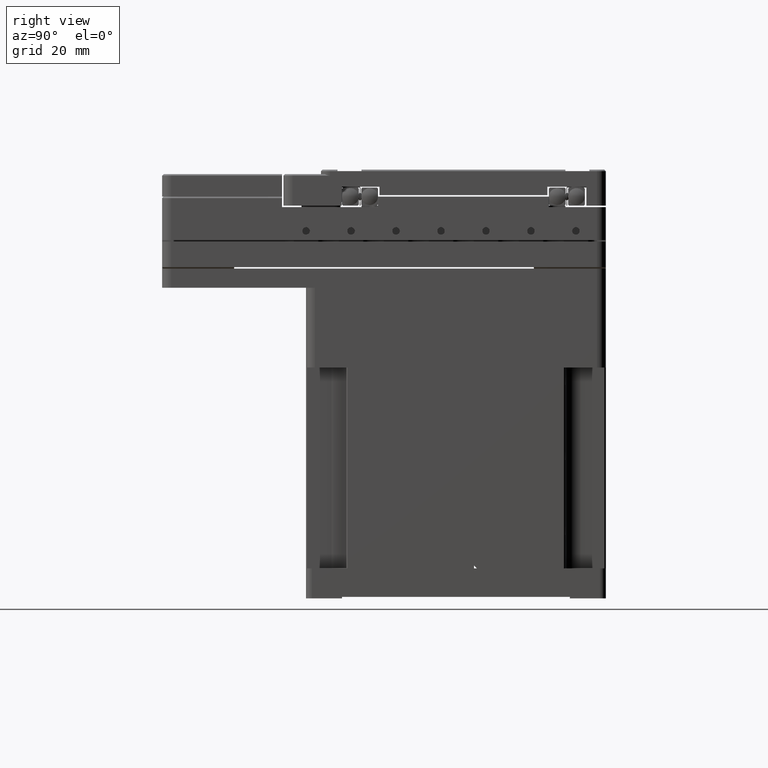
[diagram: clean part render]
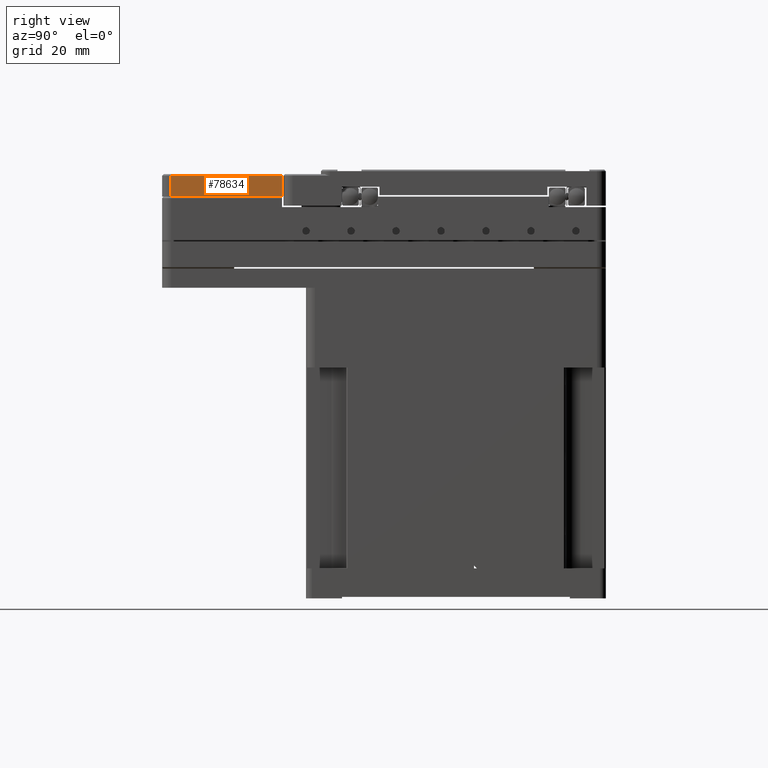
[diagram: same view with one face highlighted and labeled with its STEP entity id]
A machine part, right view. The second image highlights one B-rep face of the part: STEP entity #78634.
In plain terms, the highlighted planar face has unit normal (1, -0, 0).
Its self-contained STEP definition (entity closure, byte-faithful):
#3441 = DIRECTION ( 'NONE',  ( 1.665334536937734811E-16, 1.000000000000000000, -0.000000000000000000 ) ) ;
#5225 = EDGE_CURVE ( 'NONE', #83578, #23950, #44139, .T. ) ;
#9554 = LINE ( 'NONE', #25073, #69283 ) ;
#11526 = CARTESIAN_POINT ( 'NONE',  ( 49.99999999902998837, -94.99999998645006372, 131.0000000016947865 ) ) ;
#12803 = VECTOR ( 'NONE', #87425, 1000.000000000000000 ) ;
#17460 = EDGE_CURVE ( 'NONE', #17533, #90314, #9554, .T. ) ;
#17533 = VERTEX_POINT ( 'NONE', #29184 ) ;
#23950 = VERTEX_POINT ( 'NONE', #92366 ) ;
#25073 = CARTESIAN_POINT ( 'NONE',  ( 49.99999999999996447, -58.00000000000004974, 124.0000000000000142 ) ) ;
#29184 = CARTESIAN_POINT ( 'NONE',  ( 49.99999999999996447, -94.99999999112255011, 124.0000000000000142 ) ) ;
#34331 = FACE_OUTER_BOUND ( 'NONE', #42863, .T. ) ;
#38491 = AXIS2_PLACEMENT_3D ( 'NONE', #63935, #49371, #56423 ) ;
#38617 = CARTESIAN_POINT ( 'NONE',  ( 49.99999999999996447, -58.00000000000004974, 124.0000000000000142 ) ) ;
#42863 = EDGE_LOOP ( 'NONE', ( #69559, #86782, #58630, #60403 ) ) ;
#44139 = LINE ( 'NONE', #58732, #12803 ) ;
#45033 = CARTESIAN_POINT ( 'NONE',  ( 49.99999999999996447, -58.00000000000004974, 124.0000000000000142 ) ) ;
#47068 = VECTOR ( 'NONE', #81432, 1000.000000000000000 ) ;
#49371 = DIRECTION ( 'NONE',  ( 1.000000000000000000, -1.665334536937734811E-16, 0.000000000000000000 ) ) ;
#56423 = DIRECTION ( 'NONE',  ( 0.000000000000000000, 0.000000000000000000, 1.000000000000000000 ) ) ;
#58630 = ORIENTED_EDGE ( 'NONE', *, *, #86916, .T. ) ;
#58732 = CARTESIAN_POINT ( 'NONE',  ( 49.99999999826395936, -76.50000000000005684, 131.0000000017359980 ) ) ;
#60403 = ORIENTED_EDGE ( 'NONE', *, *, #5225, .F. ) ;
#63935 = CARTESIAN_POINT ( 'NONE',  ( 49.99999999999996447, -58.00000000000004974, 124.0000000000000142 ) ) ;
#65276 = CARTESIAN_POINT ( 'NONE',  ( 49.99999999999996447, -94.99999998224505759, 124.0000000000000142 ) ) ;
#69283 = VECTOR ( 'NONE', #3441, 1000.000000000000000 ) ;
#69559 = ORIENTED_EDGE ( 'NONE', *, *, #84292, .T. ) ;
#73980 = VECTOR ( 'NONE', #86919, 1000.000000000000000 ) ;
#78634 = ADVANCED_FACE ( 'NONE', ( #34331 ), #85577, .T. ) ;
#81432 = DIRECTION ( 'NONE',  ( -0.000000000000000000, 0.000000000000000000, 1.000000000000000000 ) ) ;
#81607 = LINE ( 'NONE', #65276, #73980 ) ;
#83578 = VERTEX_POINT ( 'NONE', #11526 ) ;
#84292 = EDGE_CURVE ( 'NONE', #83578, #17533, #81607, .T. ) ;
#85577 = PLANE ( 'NONE',  #38491 ) ;
#86782 = ORIENTED_EDGE ( 'NONE', *, *, #17460, .T. ) ;
#86916 = EDGE_CURVE ( 'NONE', #90314, #23950, #88030, .T. ) ;
#86919 = DIRECTION ( 'NONE',  ( -0.000000000000000000, -0.000000000000000000, -1.000000000000000000 ) ) ;
#87425 = DIRECTION ( 'NONE',  ( 1.665334536937734811E-16, 1.000000000000000000, -0.000000000000000000 ) ) ;
#88030 = LINE ( 'NONE', #38617, #47068 ) ;
#90314 = VERTEX_POINT ( 'NONE', #45033 ) ;
#92366 = CARTESIAN_POINT ( 'NONE',  ( 49.99999999942129847, -58.00000000000004263, 131.0000000011987709 ) ) ;